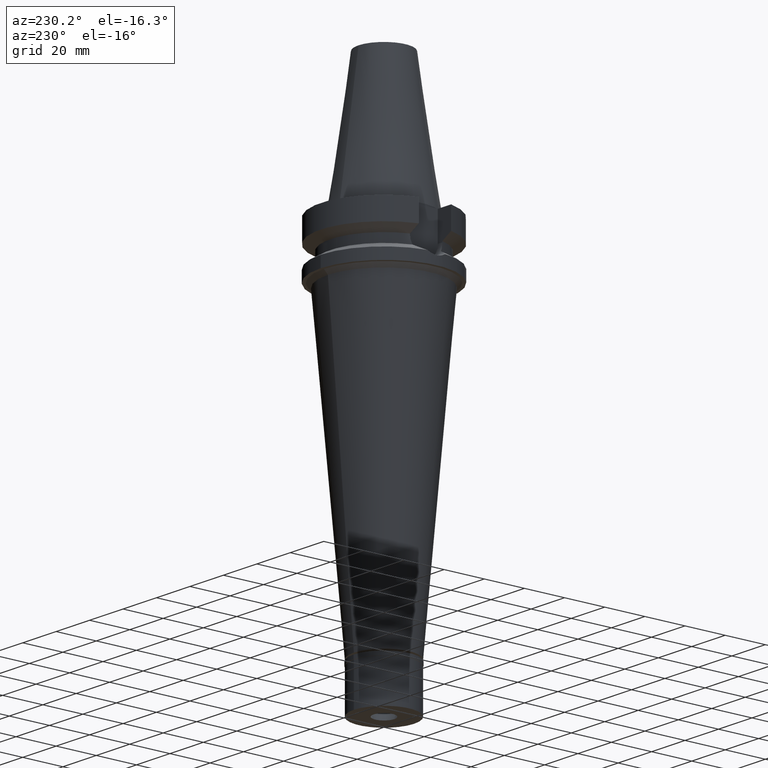
[diagram: clean part render]
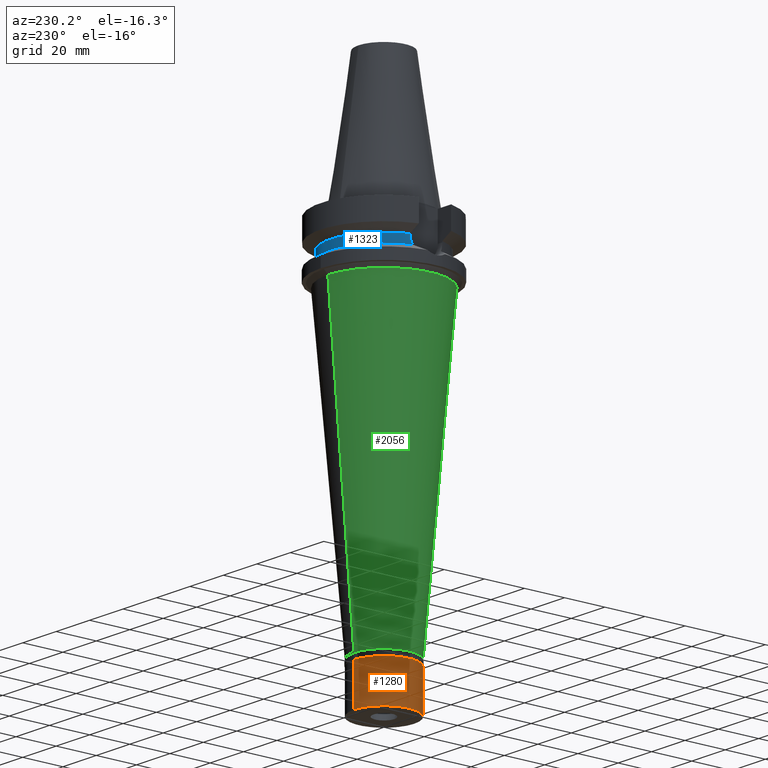
[diagram: same view with three faces highlighted in distinct colors, each labeled with its STEP entity id]
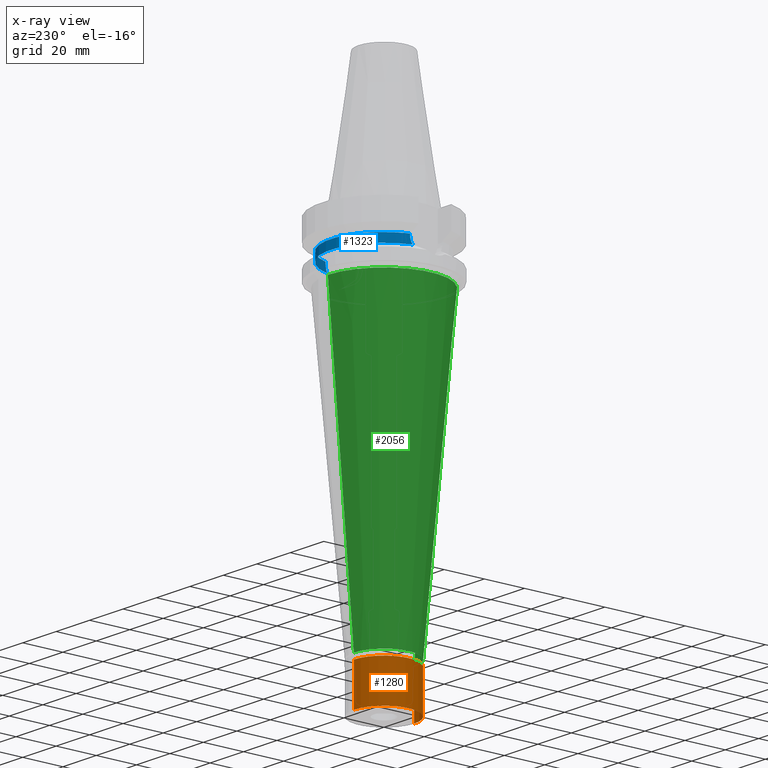
[diagram: x-ray of the same camera — body ghosted, the three highlighted faces saturated]
A machine part, auxiliary view with three faces highlighted in distinct colors.
The next image is the same camera in x-ray (body ghosted, the three faces saturated) — at least one of them is partly hidden behind the body in this view.
Their STEP definitions:

[orange] entity #1280 — the highlighted cylindrical surface (partial cylindrical patch) has radius 15 mm, axis along (0, 0, -1).
#30 = CARTESIAN_POINT ( 'NONE',  ( 0.0000000000000000000, 15.00000000000000000, -2.000000000000000000 ) ) ;
#35 = AXIS2_PLACEMENT_3D ( 'NONE', #1515, #1264, #1277 ) ;
#83 = CYLINDRICAL_SURFACE ( 'NONE', #35, 15.00000000000000000 ) ;
#111 = CARTESIAN_POINT ( 'NONE',  ( 0.0000000000000000000, -15.00000000000000000, -2.000000000000000000 ) ) ;
#181 = DIRECTION ( 'NONE',  ( 0.0000000000000000000, 0.0000000000000000000, 1.000000000000000000 ) ) ;
#212 = VERTEX_POINT ( 'NONE', #2475 ) ;
#422 = CARTESIAN_POINT ( 'NONE',  ( 0.0000000000000000000, 0.0000000000000000000, -22.00000000000000000 ) ) ;
#732 = CIRCLE ( 'NONE', #2518, 15.00000000000000000 ) ;
#882 = ORIENTED_EDGE ( 'NONE', *, *, #2015, .F. ) ;
#911 = LINE ( 'NONE', #1640, #1561 ) ;
#1045 = VERTEX_POINT ( 'NONE', #2344 ) ;
#1061 = EDGE_CURVE ( 'NONE', #212, #2321, #3083, .T. ) ;
#1208 = ORIENTED_EDGE ( 'NONE', *, *, #1895, .T. ) ;
#1264 = DIRECTION ( 'NONE',  ( 0.0000000000000000000, 0.0000000000000000000, -1.000000000000000000 ) ) ;
#1277 = DIRECTION ( 'NONE',  ( 0.0000000000000000000, -1.000000000000000000, 0.0000000000000000000 ) ) ;
#1280 = ADVANCED_FACE ( 'NONE', ( #2178 ), #83, .T. ) ;
#1406 = AXIS2_PLACEMENT_3D ( 'NONE', #422, #181, #1642 ) ;
#1446 = VECTOR ( 'NONE', #1975, 1000.000000000000000 ) ;
#1515 = CARTESIAN_POINT ( 'NONE',  ( 0.0000000000000000000, 0.0000000000000000000, 0.0000000000000000000 ) ) ;
#1561 = VECTOR ( 'NONE', #2788, 1000.000000000000000 ) ;
#1640 = CARTESIAN_POINT ( 'NONE',  ( 0.0000000000000000000, -15.00000000000000000, -2.000000000000000000 ) ) ;
#1642 = DIRECTION ( 'NONE',  ( 0.0000000000000000000, 1.000000000000000000, 0.0000000000000000000 ) ) ;
#1687 = CARTESIAN_POINT ( 'NONE',  ( 0.0000000000000000000, 0.0000000000000000000, -2.000000000000000000 ) ) ;
#1895 = EDGE_CURVE ( 'NONE', #1045, #212, #2207, .T. ) ;
#1955 = CARTESIAN_POINT ( 'NONE',  ( 0.0000000000000000000, -15.00000000000000000, -22.00000000000000000 ) ) ;
#1975 = DIRECTION ( 'NONE',  ( 0.0000000000000000000, 0.0000000000000000000, -1.000000000000000000 ) ) ;
#2015 = EDGE_CURVE ( 'NONE', #2509, #2321, #911, .T. ) ;
#2178 = FACE_OUTER_BOUND ( 'NONE', #2195, .T. ) ;
#2195 = EDGE_LOOP ( 'NONE', ( #2216, #882, #3073, #1208 ) ) ;
#2207 = LINE ( 'NONE', #30, #1446 ) ;
#2216 = ORIENTED_EDGE ( 'NONE', *, *, #1061, .T. ) ;
#2321 = VERTEX_POINT ( 'NONE', #1955 ) ;
#2344 = CARTESIAN_POINT ( 'NONE',  ( 0.0000000000000000000, 15.00000000000000000, -2.000000000000000000 ) ) ;
#2475 = CARTESIAN_POINT ( 'NONE',  ( 0.0000000000000000000, 15.00000000000000000, -22.00000000000000000 ) ) ;
#2501 = EDGE_CURVE ( 'NONE', #2509, #1045, #732, .T. ) ;
#2509 = VERTEX_POINT ( 'NONE', #111 ) ;
#2518 = AXIS2_PLACEMENT_3D ( 'NONE', #1687, #2660, #3065 ) ;
#2660 = DIRECTION ( 'NONE',  ( 0.0000000000000000000, 0.0000000000000000000, -1.000000000000000000 ) ) ;
#2788 = DIRECTION ( 'NONE',  ( 0.0000000000000000000, 0.0000000000000000000, -1.000000000000000000 ) ) ;
#3065 = DIRECTION ( 'NONE',  ( 0.0000000000000000000, -1.000000000000000000, 0.0000000000000000000 ) ) ;
#3073 = ORIENTED_EDGE ( 'NONE', *, *, #2501, .T. ) ;
#3083 = CIRCLE ( 'NONE', #1406, 15.00000000000000000 ) ;

[blue] entity #1323 — the highlighted cylindrical surface (partial cylindrical patch) has radius 26.5 mm, axis along (0, 0, -1).
#47 = CARTESIAN_POINT ( 'NONE',  ( -25.30215616128705136, 7.877576232114727794, -16.61085564858990082 ) ) ;
#48 = B_SPLINE_CURVE_WITH_KNOTS ( 'NONE', 3,
 ( #59, #2695, #2939, #766, #1737, #2225, #47, #1019, #2003, #1987, #791, #2968, #2952, #2735 ),
 .UNSPECIFIED., .F., .F.,
 ( 4, 2, 2, 1, 1, 2, 2, 4 ),
 ( 0.0000000000000000000, 0.2500000000000045519, 0.3750000000000056066, 0.4375000000000061062, 0.4687500000000052736, 0.4843750000000049960, 0.5000000000000046629, 1.000000000000000000 ),
 .UNSPECIFIED. ) ;
#59 = CARTESIAN_POINT ( 'NONE',  ( -25.24772266958000344, 8.050000000000000711, -14.94999999999999929 ) ) ;
#92 = CARTESIAN_POINT ( 'NONE',  ( 25.24772266957998923, 8.049999999999998934, -15.58999073683360237 ) ) ;
#118 = VERTEX_POINT ( 'NONE', #475 ) ;
#131 = CARTESIAN_POINT ( 'NONE',  ( -25.24772266958000344, 8.050000000000000711, -14.94999999999999929 ) ) ;
#144 = CARTESIAN_POINT ( 'NONE',  ( 25.32419265906722927, 7.806329682138427373, -16.91574545218137615 ) ) ;
#189 = EDGE_CURVE ( 'NONE', #398, #2009, #2372, .T. ) ;
#234 = CARTESIAN_POINT ( 'NONE',  ( 0.0000000000000000000, 0.0000000000000000000, -18.74774300138999905 ) ) ;
#254 = VERTEX_POINT ( 'NONE', #1317 ) ;
#263 = CARTESIAN_POINT ( 'NONE',  ( 25.53175183775000079, 7.097862220092999941, -18.74774300138999905 ) ) ;
#281 = DIRECTION ( 'NONE',  ( -0.9527442516822307583, 0.3037735849057093818, 0.0000000000000000000 ) ) ;
#325 = CYLINDRICAL_SURFACE ( 'NONE', #2476, 26.50000000000000000 ) ;
#381 = CARTESIAN_POINT ( 'NONE',  ( 25.33292553851903151, 7.777985707518505265, -17.02558215514781992 ) ) ;
#395 = VECTOR ( 'NONE', #3070, 1000.000000000000114 ) ;
#398 = VERTEX_POINT ( 'NONE', #1583 ) ;
#401 = CARTESIAN_POINT ( 'NONE',  ( 25.39164478449283635, 7.584820969905358368, -17.65194245033610088 ) ) ;
#475 = CARTESIAN_POINT ( 'NONE',  ( 25.24772266958000344, 8.050000000000000711, -14.94999999999999929 ) ) ;
#496 = EDGE_LOOP ( 'NONE', ( #1596, #788, #582, #1388, #1950, #945 ) ) ;
#553 = VERTEX_POINT ( 'NONE', #263 ) ;
#582 = ORIENTED_EDGE ( 'NONE', *, *, #3049, .F. ) ;
#653 = CARTESIAN_POINT ( 'NONE',  ( 25.24772413102000002, 8.049995416383998403, -14.45229202342000008 ) ) ;
#766 = CARTESIAN_POINT ( 'NONE',  ( -25.27269574104415994, 7.971769475022786544, -16.08146184953518443 ) ) ;
#788 = ORIENTED_EDGE ( 'NONE', *, *, #2777, .F. ) ;
#791 = CARTESIAN_POINT ( 'NONE',  ( -25.32121872273786067, 7.815971166074239029, -16.87703378351244154 ) ) ;
#831 = DIRECTION ( 'NONE',  ( 0.0000000000000000000, -1.000000000000000000, 0.0000000000000000000 ) ) ;
#945 = ORIENTED_EDGE ( 'NONE', *, *, #952, .F. ) ;
#952 = EDGE_CURVE ( 'NONE', #398, #1521, #2833, .T. ) ;
#1019 = CARTESIAN_POINT ( 'NONE',  ( -25.31205759391835741, 7.845621557329842233, -16.75326793494526711 ) ) ;
#1023 = FACE_OUTER_BOUND ( 'NONE', #496, .T. ) ;
#1041 = CARTESIAN_POINT ( 'NONE',  ( 25.53175183775000079, 7.097862220092999941, -18.74774300138999905 ) ) ;
#1246 = CARTESIAN_POINT ( 'NONE',  ( 0.0000000000000000000, 1.065333950388000029E-14, -14.45225699861000024 ) ) ;
#1298 = CARTESIAN_POINT ( 'NONE',  ( 25.37572817765628841, 7.637723572231249314, -17.49814693643546448 ) ) ;
#1313 = CARTESIAN_POINT ( 'NONE',  ( 0.0000000000000000000, 2.183973869259000036E-14, 78.33500000000000796 ) ) ;
#1317 = CARTESIAN_POINT ( 'NONE',  ( -25.53175183775000079, 7.097862220092999941, -18.74774300138999905 ) ) ;
#1323 = ADVANCED_FACE ( 'NONE', ( #1023 ), #325, .T. ) ;
#1388 = ORIENTED_EDGE ( 'NONE', *, *, #1732, .T. ) ;
#1441 = DIRECTION ( 'NONE',  ( 0.9634623335000935818, 0.2678438573619981722, 0.0000000000000000000 ) ) ;
#1455 = B_SPLINE_CURVE_WITH_KNOTS ( 'NONE', 3,
 ( #1041, #2016, #2981, #401, #1298, #2781, #3012, #381, #2268, #2319, #144, #2250, #92, #3048 ),
 .UNSPECIFIED., .F., .F.,
 ( 4, 2, 2, 1, 1, 2, 2, 4 ),
 ( 0.0000000000000000000, 0.2499999999999773515, 0.3749999999999648059, 0.4374999999999586997, 0.4687499999999569789, 0.4843749999999561462, 0.4999999999999552580, 1.000000000000000000 ),
 .UNSPECIFIED. ) ;
#1480 = DIRECTION ( 'NONE',  ( 0.0000000000000000000, 0.0000000000000000000, -1.000000000000000000 ) ) ;
#1520 = CARTESIAN_POINT ( 'NONE',  ( 25.24772266958000344, 8.050000000000000711, -14.94999999999999929 ) ) ;
#1521 = VERTEX_POINT ( 'NONE', #131 ) ;
#1536 = VECTOR ( 'NONE', #2235, 1000.000000000000114 ) ;
#1583 = CARTESIAN_POINT ( 'NONE',  ( -25.24772216375000156, 8.050001586471001502, -14.45224487658000001 ) ) ;
#1596 = ORIENTED_EDGE ( 'NONE', *, *, #189, .T. ) ;
#1607 = AXIS2_PLACEMENT_3D ( 'NONE', #234, #2160, #1441 ) ;
#1732 = EDGE_CURVE ( 'NONE', #553, #254, #2470, .T. ) ;
#1737 = CARTESIAN_POINT ( 'NONE',  ( -25.28049982587671707, 7.946985634402442322, -16.24435369772060156 ) ) ;
#1752 = DIRECTION ( 'NONE',  ( 0.0000000000000000000, 0.0000000000000000000, -1.000000000000000000 ) ) ;
#1950 = ORIENTED_EDGE ( 'NONE', *, *, #2406, .F. ) ;
#1987 = CARTESIAN_POINT ( 'NONE',  ( -25.31954463780457587, 7.821394976198481785, -16.85491936549455971 ) ) ;
#2003 = CARTESIAN_POINT ( 'NONE',  ( -25.31652055493196229, 7.831184758220201658, -16.81426458566338411 ) ) ;
#2009 = VERTEX_POINT ( 'NONE', #653 ) ;
#2016 = CARTESIAN_POINT ( 'NONE',  ( 25.48481820018147914, 7.266687417059683796, -18.43221401827393890 ) ) ;
#2101 = CARTESIAN_POINT ( 'NONE',  ( -25.24772216375000156, 8.050001586471001502, -14.45224487658000001 ) ) ;
#2160 = DIRECTION ( 'NONE',  ( 0.0000000000000000000, 0.0000000000000000000, 1.000000000000000000 ) ) ;
#2225 = CARTESIAN_POINT ( 'NONE',  ( -25.29454717857531421, 7.902012029789251102, -16.48868902742450970 ) ) ;
#2235 = DIRECTION ( 'NONE',  ( 2.936344683098950112E-06, -9.209448786821828654E-06, 0.9999999999532819261 ) ) ;
#2250 = CARTESIAN_POINT ( 'NONE',  ( 25.27269246206562414, 7.973290322427805776, -16.24535685338602775 ) ) ;
#2268 = CARTESIAN_POINT ( 'NONE',  ( 25.32844325893252702, 7.792538688759799825, -16.96970524096439448 ) ) ;
#2319 = CARTESIAN_POINT ( 'NONE',  ( 25.32550226136618932, 7.802082245155967932, -16.93251888162995655 ) ) ;
#2372 = CIRCLE ( 'NONE', #2717, 26.50000000000000711 ) ;
#2406 = EDGE_CURVE ( 'NONE', #1521, #254, #48, .T. ) ;
#2470 = CIRCLE ( 'NONE', #1607, 26.49999999999998224 ) ;
#2476 = AXIS2_PLACEMENT_3D ( 'NONE', #1313, #1752, #831 ) ;
#2480 = LINE ( 'NONE', #1520, #1536 ) ;
#2695 = CARTESIAN_POINT ( 'NONE',  ( -25.24772266958000344, 8.050000000000018474, -15.27000127552689257 ) ) ;
#2717 = AXIS2_PLACEMENT_3D ( 'NONE', #1246, #1480, #281 ) ;
#2735 = CARTESIAN_POINT ( 'NONE',  ( -25.53175183775000079, 7.097862220092999941, -18.74774300138999905 ) ) ;
#2777 = EDGE_CURVE ( 'NONE', #118, #2009, #2480, .T. ) ;
#2781 = CARTESIAN_POINT ( 'NONE',  ( 25.35411833098577716, 7.708843546321432427, -17.27003765534289670 ) ) ;
#2833 = LINE ( 'NONE', #2101, #395 ) ;
#2939 = CARTESIAN_POINT ( 'NONE',  ( -25.25396593744603635, 8.030896968456861629, -15.59377931114971183 ) ) ;
#2952 = CARTESIAN_POINT ( 'NONE',  ( -25.43788636140676118, 7.435506143573715754, -18.11669712823439582 ) ) ;
#2968 = CARTESIAN_POINT ( 'NONE',  ( -25.36818304348092923, 7.663708172131208585, -17.48836484279920711 ) ) ;
#2981 = CARTESIAN_POINT ( 'NONE',  ( 25.44392473217112283, 7.408251102527441567, -18.11706870839242001 ) ) ;
#3012 = CARTESIAN_POINT ( 'NONE',  ( 25.34387967354658855, 7.742345491376021016, -17.15662736174668979 ) ) ;
#3048 = CARTESIAN_POINT ( 'NONE',  ( 25.24772266958000344, 8.050000000000000711, -14.94999999999999929 ) ) ;
#3049 = EDGE_CURVE ( 'NONE', #553, #118, #1455, .T. ) ;
#3070 = DIRECTION ( 'NONE',  ( -1.016224662221004237E-06, -3.187251308830015568E-06, -0.9999999999944043649 ) ) ;

[green] entity #2056 — the highlighted conical surface has half-angle 5 deg.
#29 = VECTOR ( 'NONE', #2312, 1000.000000000000000 ) ;
#68 = EDGE_CURVE ( 'NONE', #2916, #932, #2918, .T. ) ;
#319 = EDGE_LOOP ( 'NONE', ( #1782, #2390, #2979, #2364 ) ) ;
#523 = EDGE_CURVE ( 'NONE', #2916, #1992, #1389, .T. ) ;
#545 = AXIS2_PLACEMENT_3D ( 'NONE', #2943, #735, #1465 ) ;
#735 = DIRECTION ( 'NONE',  ( 0.0000000000000000000, 0.0000000000000000000, 1.000000000000000000 ) ) ;
#857 = EDGE_CURVE ( 'NONE', #932, #2186, #1740, .T. ) ;
#877 = CARTESIAN_POINT ( 'NONE',  ( 0.0000000000000000000, -15.00000000000000000, -177.1999999999999886 ) ) ;
#932 = VERTEX_POINT ( 'NONE', #1868 ) ;
#1122 = DIRECTION ( 'NONE',  ( 0.0000000000000000000, 0.0000000000000000000, 1.000000000000000000 ) ) ;
#1196 = EDGE_CURVE ( 'NONE', #2186, #1992, #1202, .T. ) ;
#1202 = CIRCLE ( 'NONE', #545, 15.00000000000000000 ) ;
#1303 = CONICAL_SURFACE ( 'NONE', #2581, 21.48290996726999680, 0.08726646259969973729 ) ;
#1378 = DIRECTION ( 'NONE',  ( 0.0000000000000000000, 1.000000000000000000, 0.0000000000000000000 ) ) ;
#1389 = LINE ( 'NONE', #2365, #29 ) ;
#1407 = CARTESIAN_POINT ( 'NONE',  ( 0.0000000000000000000, 0.0000000000000000000, -103.0999999999999943 ) ) ;
#1465 = DIRECTION ( 'NONE',  ( 0.0000000000000000000, 1.000000000000000000, 0.0000000000000000000 ) ) ;
#1740 = LINE ( 'NONE', #2211, #2636 ) ;
#1782 = ORIENTED_EDGE ( 'NONE', *, *, #1196, .T. ) ;
#1868 = CARTESIAN_POINT ( 'NONE',  ( 0.0000000000000000000, 27.96581993454000070, -29.00000000000000000 ) ) ;
#1992 = VERTEX_POINT ( 'NONE', #877 ) ;
#1997 = CARTESIAN_POINT ( 'NONE',  ( 0.0000000000000000000, -27.96581993454000070, -29.00000000000000000 ) ) ;
#2056 = ADVANCED_FACE ( 'NONE', ( #2378 ), #1303, .T. ) ;
#2186 = VERTEX_POINT ( 'NONE', #2628 ) ;
#2211 = CARTESIAN_POINT ( 'NONE',  ( 0.0000000000000000000, 27.96581993454000070, -29.00000000000000000 ) ) ;
#2218 = CARTESIAN_POINT ( 'NONE',  ( 0.0000000000000000000, 0.0000000000000000000, -29.00000000000000000 ) ) ;
#2260 = AXIS2_PLACEMENT_3D ( 'NONE', #2218, #3120, #2459 ) ;
#2312 = DIRECTION ( 'NONE',  ( 0.0000000000000000000, 0.08715574274765398866, -0.9961946980917458783 ) ) ;
#2364 = ORIENTED_EDGE ( 'NONE', *, *, #857, .T. ) ;
#2365 = CARTESIAN_POINT ( 'NONE',  ( 0.0000000000000000000, -27.96581993454000070, -29.00000000000000000 ) ) ;
#2378 = FACE_OUTER_BOUND ( 'NONE', #319, .T. ) ;
#2390 = ORIENTED_EDGE ( 'NONE', *, *, #523, .F. ) ;
#2459 = DIRECTION ( 'NONE',  ( 0.0000000000000000000, -1.000000000000000000, 0.0000000000000000000 ) ) ;
#2490 = DIRECTION ( 'NONE',  ( 0.0000000000000000000, -0.08715574274765398866, -0.9961946980917458783 ) ) ;
#2581 = AXIS2_PLACEMENT_3D ( 'NONE', #1407, #1122, #1378 ) ;
#2628 = CARTESIAN_POINT ( 'NONE',  ( 0.0000000000000000000, 15.00000000000000000, -177.1999999999999886 ) ) ;
#2636 = VECTOR ( 'NONE', #2490, 1000.000000000000000 ) ;
#2916 = VERTEX_POINT ( 'NONE', #1997 ) ;
#2918 = CIRCLE ( 'NONE', #2260, 27.96581993454000070 ) ;
#2943 = CARTESIAN_POINT ( 'NONE',  ( 0.0000000000000000000, 0.0000000000000000000, -177.1999999999999886 ) ) ;
#2979 = ORIENTED_EDGE ( 'NONE', *, *, #68, .T. ) ;
#3120 = DIRECTION ( 'NONE',  ( 0.0000000000000000000, 0.0000000000000000000, -1.000000000000000000 ) ) ;